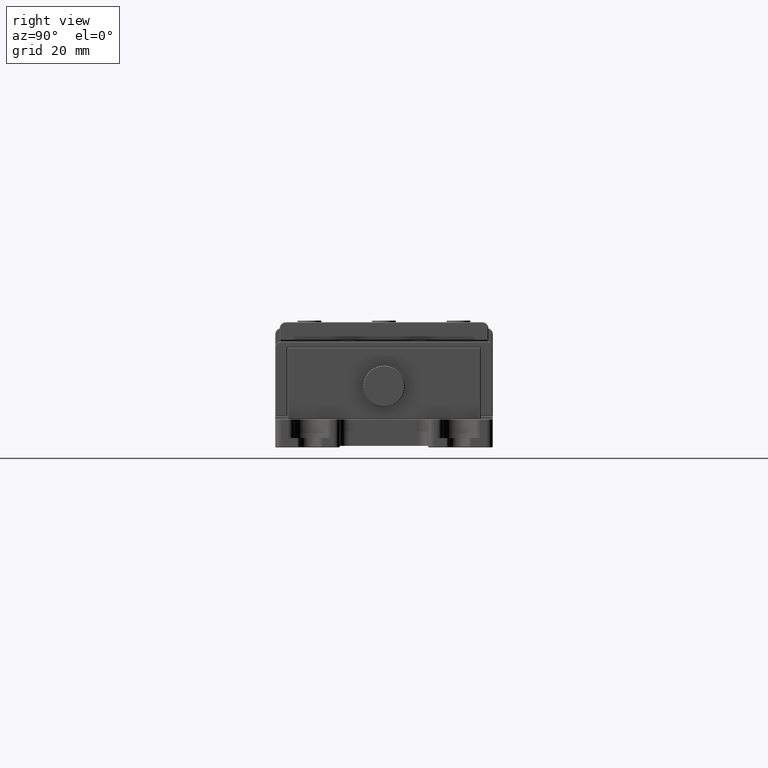
[diagram: clean part render]
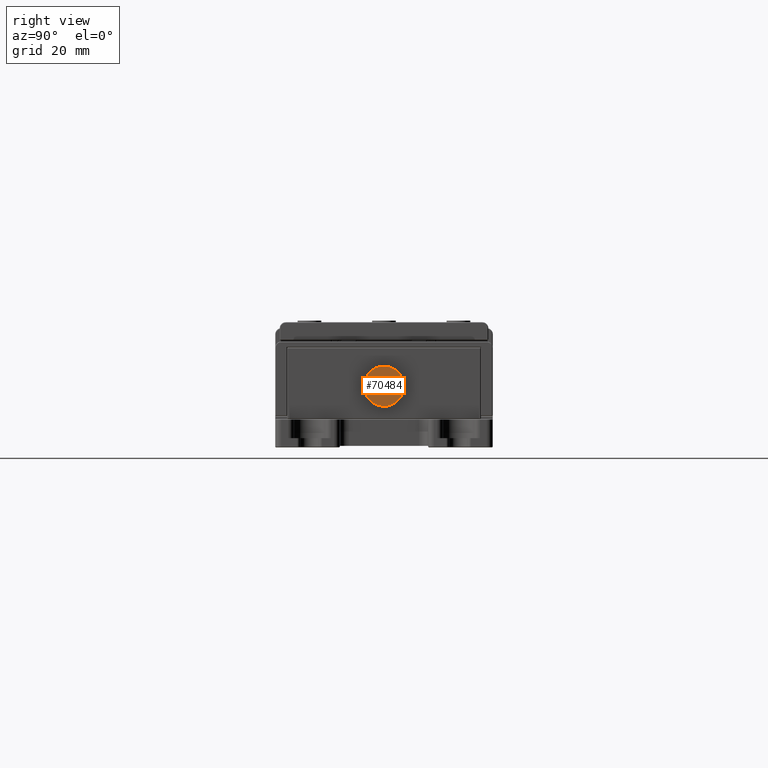
[diagram: same view with one face highlighted and labeled with its STEP entity id]
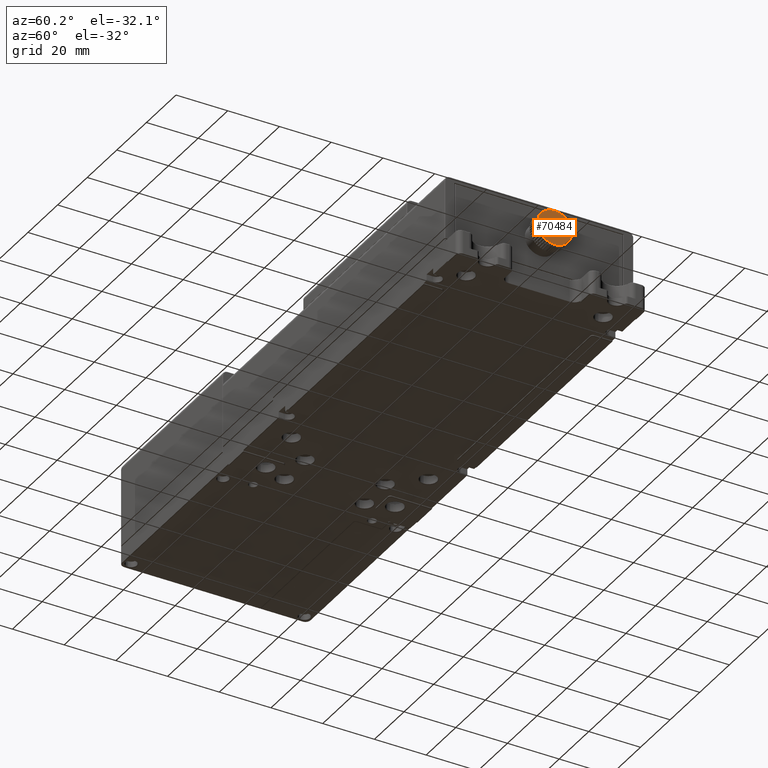
[diagram: same view with one face highlighted and labeled with its STEP entity id]
A machine part, right view. The second image highlights one B-rep face of the part: STEP entity #70484.
A second angle (auxiliary view) of the same face is appended — the face is thin or edge-on in the first view.
In plain terms, the highlighted planar face has unit normal (1, 0, 0).
Its self-contained STEP definition (entity closure, byte-faithful):
#87 = DIRECTION ( 'NONE',  ( 1.000000000000000000, 1.823545169718444796E-16, 8.205456656848479266E-17 ) ) ;
#179 = CIRCLE ( 'NONE', #1354, 6.699999999999997513 ) ;
#183 = DIRECTION ( 'NONE',  ( 0.000000000000000000, -0.4103440247055836210, 0.9119307985743344558 ) ) ;
#248 = EDGE_CURVE ( 'NONE', #11303, #12421, #52793, .T. ) ;
#280 = EDGE_CURVE ( 'NONE', #52298, #64868, #45716, .T. ) ;
#511 = EDGE_CURVE ( 'NONE', #1955, #22024, #51624, .T. ) ;
#517 = EDGE_CURVE ( 'NONE', #1281, #21743, #41080, .T. ) ;
#591 = CARTESIAN_POINT ( 'NONE',  ( 77.07474001859770851, -11.71850241578019869, 21.10993635044805217 ) ) ;
#598 = CARTESIAN_POINT ( 'NONE',  ( 77.07474001859770851, -8.969197450252782033, 15.00000000000000000 ) ) ;
#615 = ORIENTED_EDGE ( 'NONE', *, *, #511, .T. ) ;
#745 = DIRECTION ( 'NONE',  ( 0.000000000000000000, -0.4103440247055836210, 0.9119307985743344558 ) ) ;
#770 = EDGE_CURVE ( 'NONE', #64868, #14094, #53695, .T. ) ;
#1112 = ORIENTED_EDGE ( 'NONE', *, *, #52250, .T. ) ;
#1281 = VERTEX_POINT ( 'NONE', #591 ) ;
#1299 = CARTESIAN_POINT ( 'NONE',  ( 77.07474001859770851, -8.969197450252782033, 15.00000000000000000 ) ) ;
#1338 = CARTESIAN_POINT ( 'NONE',  ( 77.07474001859770851, -8.969197450252782033, 15.00000000000000000 ) ) ;
#1354 = AXIS2_PLACEMENT_3D ( 'NONE', #45200, #34138, #56622 ) ;
#1498 = VERTEX_POINT ( 'NONE', #36025 ) ;
#1560 = AXIS2_PLACEMENT_3D ( 'NONE', #58210, #46405, #69270 ) ;
#1928 = DIRECTION ( 'NONE',  ( 0.000000000000000000, -0.4103440247055836210, 0.9119307985743344558 ) ) ;
#1955 = VERTEX_POINT ( 'NONE', #32207 ) ;
#2076 = AXIS2_PLACEMENT_3D ( 'NONE', #67500, #12529, #22504 ) ;
#2083 = EDGE_LOOP ( 'NONE', ( #66597, #56348, #1112, #45281, #42321, #54802, #8423, #5755, #37272, #3643, #69590, #66206, #57055, #26618, #11806, #63907, #615, #63576, #66765, #35780, #61383, #16360, #47934, #29564, #44338, #15602, #34821, #68963, #20090, #4789, #8911, #37950, #42399, #40039, #58536, #14698, #23947, #36355, #17183, #51347, #17207, #67983, #24435, #31644, #3090, #46927, #31630, #63771, #62036, #63871 ) ) ;
#2513 = CARTESIAN_POINT ( 'NONE',  ( 77.07474001859770851, -2.698687376380169756, 17.36023376246129857 ) ) ;
#3090 = ORIENTED_EDGE ( 'NONE', *, *, #48856, .T. ) ;
#3351 = CIRCLE ( 'NONE', #45794, 6.699999999999997513 ) ;
#3643 = ORIENTED_EDGE ( 'NONE', *, *, #30662, .T. ) ;
#3687 = AXIS2_PLACEMENT_3D ( 'NONE', #40280, #29936, #12232 ) ;
#4517 = AXIS2_PLACEMENT_3D ( 'NONE', #62718, #63084, #24009 ) ;
#4789 = ORIENTED_EDGE ( 'NONE', *, *, #17285, .T. ) ;
#4943 = DIRECTION ( 'NONE',  ( 1.000000000000000000, 1.823545169718444796E-16, 8.205456656848479266E-17 ) ) ;
#4994 = VERTEX_POINT ( 'NONE', #9906 ) ;
#5035 = AXIS2_PLACEMENT_3D ( 'NONE', #47242, #12968, #29586 ) ;
#5070 = CIRCLE ( 'NONE', #66305, 6.699999999999997513 ) ;
#5259 = AXIS2_PLACEMENT_3D ( 'NONE', #68629, #45399, #745 ) ;
#5405 = CARTESIAN_POINT ( 'NONE',  ( 77.07474001859770851, -8.969197450252782033, 15.00000000000000000 ) ) ;
#5619 = VERTEX_POINT ( 'NONE', #42865 ) ;
#5639 = CARTESIAN_POINT ( 'NONE',  ( 77.07474001859770851, -9.503447428839230327, 8.321334193090629938 ) ) ;
#5755 = ORIENTED_EDGE ( 'NONE', *, *, #62267, .T. ) ;
#6319 = DIRECTION ( 'NONE',  ( 0.000000000000000000, -0.4103440247055836210, 0.9119307985743344558 ) ) ;
#6361 = DIRECTION ( 'NONE',  ( 1.000000000000000000, 1.823545169718444796E-16, 8.205456656848479266E-17 ) ) ;
#6899 = CIRCLE ( 'NONE', #42239, 6.699999999999997513 ) ;
#7894 = EDGE_CURVE ( 'NONE', #19225, #12166, #21548, .T. ) ;
#8063 = CARTESIAN_POINT ( 'NONE',  ( 77.07474001859770851, -8.969197450252782033, 15.00000000000000000 ) ) ;
#8136 = VERTEX_POINT ( 'NONE', #53653 ) ;
#8423 = ORIENTED_EDGE ( 'NONE', *, *, #26789, .T. ) ;
#8448 = DIRECTION ( 'NONE',  ( 1.000000000000000000, 1.823545169718444796E-16, 8.205456656848479266E-17 ) ) ;
#8507 = EDGE_CURVE ( 'NONE', #55212, #62599, #16700, .T. ) ;
#8633 = DIRECTION ( 'NONE',  ( 1.000000000000000000, 1.823545169718444796E-16, 8.205456656848479266E-17 ) ) ;
#8911 = ORIENTED_EDGE ( 'NONE', *, *, #37133, .T. ) ;
#9254 = VERTEX_POINT ( 'NONE', #24212 ) ;
#9739 = DIRECTION ( 'NONE',  ( 1.000000000000000000, 1.823545169718444796E-16, 8.205456656848479266E-17 ) ) ;
#9809 = EDGE_CURVE ( 'NONE', #70773, #1281, #55226, .T. ) ;
#9906 = CARTESIAN_POINT ( 'NONE',  ( 77.07474001859770851, -7.007349655229790031, 8.593663041240848344 ) ) ;
#10358 = VERTEX_POINT ( 'NONE', #64023 ) ;
#10375 = AXIS2_PLACEMENT_3D ( 'NONE', #1338, #35305, #12057 ) ;
#10493 = DIRECTION ( 'NONE',  ( 0.000000000000000000, -0.4103440247055836210, 0.9119307985743344558 ) ) ;
#10680 = CIRCLE ( 'NONE', #48318, 6.699999999999997513 ) ;
#10725 = VERTEX_POINT ( 'NONE', #68374 ) ;
#10857 = CARTESIAN_POINT ( 'NONE',  ( 77.07474001859770851, -8.969197450252782033, 15.00000000000000000 ) ) ;
#11303 = VERTEX_POINT ( 'NONE', #56323 ) ;
#11497 = CARTESIAN_POINT ( 'NONE',  ( 77.07474001859770851, -7.602101410844870344, 21.55904325485319717 ) ) ;
#11529 = CIRCLE ( 'NONE', #10375, 6.699999999999997513 ) ;
#11806 = ORIENTED_EDGE ( 'NONE', *, *, #23547, .T. ) ;
#11890 = EDGE_CURVE ( 'NONE', #20421, #65376, #48677, .T. ) ;
#11997 = CIRCLE ( 'NONE', #27293, 6.699999999999997513 ) ;
#12057 = DIRECTION ( 'NONE',  ( 0.000000000000000000, -0.4103440247055836210, 0.9119307985743344558 ) ) ;
#12166 = VERTEX_POINT ( 'NONE', #46066 ) ;
#12232 = DIRECTION ( 'NONE',  ( 0.000000000000000000, -0.4103440247055836210, 0.9119307985743344558 ) ) ;
#12246 = CIRCLE ( 'NONE', #59358, 6.699999999999997513 ) ;
#12421 = VERTEX_POINT ( 'NONE', #71492 ) ;
#12529 = DIRECTION ( 'NONE',  ( 1.000000000000000000, 1.823545169718444796E-16, 8.205456656848479266E-17 ) ) ;
#12755 = CIRCLE ( 'NONE', #24567, 6.699999999999997513 ) ;
#12968 = DIRECTION ( 'NONE',  ( 1.000000000000000000, 1.823545169718444796E-16, 8.205456656848479266E-17 ) ) ;
#13122 = CIRCLE ( 'NONE', #50791, 6.699999999999997513 ) ;
#13332 = CIRCLE ( 'NONE', #5035, 6.699999999999997513 ) ;
#13405 = AXIS2_PLACEMENT_3D ( 'NONE', #1299, #46672, #45937 ) ;
#13612 = AXIS2_PLACEMENT_3D ( 'NONE', #31204, #63669, #69941 ) ;
#13711 = CIRCLE ( 'NONE', #54936, 6.699999999999997513 ) ;
#13802 = VERTEX_POINT ( 'NONE', #58172 ) ;
#13839 = CARTESIAN_POINT ( 'NONE',  ( 77.07474001859770851, -8.969197450252782033, 15.00000000000000000 ) ) ;
#14094 = VERTEX_POINT ( 'NONE', #56993 ) ;
#14207 = CIRCLE ( 'NONE', #51900, 6.699999999999997513 ) ;
#14601 = CIRCLE ( 'NONE', #36998, 6.699999999999997513 ) ;
#14620 = EDGE_CURVE ( 'NONE', #19620, #62497, #13711, .T. ) ;
#14698 = ORIENTED_EDGE ( 'NONE', *, *, #64548, .T. ) ;
#15097 = AXIS2_PLACEMENT_3D ( 'NONE', #25658, #20113, #36014 ) ;
#15122 = AXIS2_PLACEMENT_3D ( 'NONE', #8063, #59314, #53060 ) ;
#15316 = VERTEX_POINT ( 'NONE', #47212 ) ;
#15602 = ORIENTED_EDGE ( 'NONE', *, *, #517, .T. ) ;
#15909 = CARTESIAN_POINT ( 'NONE',  ( 77.07474001859770851, -2.308720712943144626, 15.72667023590980051 ) ) ;
#16021 = CARTESIAN_POINT ( 'NONE',  ( 77.07474001859770851, -12.46260140462320010, 20.71717839599125099 ) ) ;
#16142 = DIRECTION ( 'NONE',  ( 1.000000000000000000, 1.823545169718444796E-16, 8.205456656848479266E-17 ) ) ;
#16268 = VERTEX_POINT ( 'NONE', #42990 ) ;
#16360 = ORIENTED_EDGE ( 'NONE', *, *, #770, .T. ) ;
#16499 = DIRECTION ( 'NONE',  ( 1.000000000000000000, 1.823545169718444796E-16, 8.205456656848479266E-17 ) ) ;
#16700 = CIRCLE ( 'NONE', #44971, 6.699999999999997513 ) ;
#16997 = CARTESIAN_POINT ( 'NONE',  ( 77.07474001859770851, -3.043947950640149891, 18.12752591793260137 ) ) ;
#17183 = ORIENTED_EDGE ( 'NONE', *, *, #39481, .T. ) ;
#17207 = ORIENTED_EDGE ( 'NONE', *, *, #28456, .T. ) ;
#17229 = CARTESIAN_POINT ( 'NONE',  ( 77.07474001859770851, -8.969197450252782033, 15.00000000000000000 ) ) ;
#17285 = EDGE_CURVE ( 'NONE', #31530, #8136, #33773, .T. ) ;
#17975 = DIRECTION ( 'NONE',  ( 0.000000000000000000, -0.4103440247055836210, 0.9119307985743344558 ) ) ;
#18174 = DIRECTION ( 'NONE',  ( 1.000000000000000000, 1.823545169718444796E-16, 8.205456656848479266E-17 ) ) ;
#18339 = CARTESIAN_POINT ( 'NONE',  ( 77.07474001859770851, -8.969197450252782033, 15.00000000000000000 ) ) ;
#18674 = CARTESIAN_POINT ( 'NONE',  ( 77.07474001859770851, -6.507133302019279419, 9.528415208553990823 ) ) ;
#18746 = EDGE_CURVE ( 'NONE', #65376, #49428, #24564, .T. ) ;
#18764 = VERTEX_POINT ( 'NONE', #2513 ) ;
#19031 = FACE_OUTER_BOUND ( 'NONE', #2083, .T. ) ;
#19151 = VERTEX_POINT ( 'NONE', #15909 ) ;
#19225 = VERTEX_POINT ( 'NONE', #16997 ) ;
#19362 = CARTESIAN_POINT ( 'NONE',  ( 77.07474001859770851, -14.32191604237821991, 19.02969027017150339 ) ) ;
#19586 = AXIS2_PLACEMENT_3D ( 'NONE', #18674, #51858, #41542 ) ;
#19620 = VERTEX_POINT ( 'NONE', #72244 ) ;
#19658 = AXIS2_PLACEMENT_3D ( 'NONE', #17229, #16142, #61115 ) ;
#20090 = ORIENTED_EDGE ( 'NONE', *, *, #39665, .T. ) ;
#20113 = DIRECTION ( 'NONE',  ( 1.000000000000000000, 1.823545169718444796E-16, 8.205456656848479266E-17 ) ) ;
#20344 = DIRECTION ( 'NONE',  ( 1.000000000000000000, 1.823545169718444796E-16, 8.205456656848479266E-17 ) ) ;
#20373 = CIRCLE ( 'NONE', #1560, 6.699999999999997513 ) ;
#20421 = VERTEX_POINT ( 'NONE', #5639 ) ;
#20650 = CARTESIAN_POINT ( 'NONE',  ( 77.07474001859770851, -15.23970752412540008, 12.63976623753868012 ) ) ;
#20759 = DIRECTION ( 'NONE',  ( 1.000000000000000000, 1.823545169718444796E-16, 8.205456656848479266E-17 ) ) ;
#20821 = CARTESIAN_POINT ( 'NONE',  ( 77.07474001859770851, -8.969197450252782033, 15.00000000000000000 ) ) ;
#21043 = EDGE_CURVE ( 'NONE', #22024, #15316, #14601, .T. ) ;
#21376 = CIRCLE ( 'NONE', #53163, 6.699999999999997513 ) ;
#21380 = EDGE_CURVE ( 'NONE', #14094, #57216, #47549, .T. ) ;
#21478 = CARTESIAN_POINT ( 'NONE',  ( 77.07474001859770851, -8.969197450252782033, 15.00000000000000000 ) ) ;
#21528 = AXIS2_PLACEMENT_3D ( 'NONE', #72079, #55101, #31892 ) ;
#21548 = CIRCLE ( 'NONE', #58048, 6.699999999999997513 ) ;
#21583 = CARTESIAN_POINT ( 'NONE',  ( 77.07474001859770851, -8.969197450252782033, 15.00000000000000000 ) ) ;
#21743 = VERTEX_POINT ( 'NONE', #16021 ) ;
#22024 = VERTEX_POINT ( 'NONE', #36622 ) ;
#22158 = CIRCLE ( 'NONE', #63396, 6.699999999999997513 ) ;
#22202 = EDGE_CURVE ( 'NONE', #62357, #55212, #61776, .T. ) ;
#22504 = DIRECTION ( 'NONE',  ( 0.000000000000000000, -0.4103440247055836210, 0.9119307985743344558 ) ) ;
#22510 = VERTEX_POINT ( 'NONE', #55288 ) ;
#22533 = CIRCLE ( 'NONE', #43760, 6.699999999999997513 ) ;
#22780 = AXIS2_PLACEMENT_3D ( 'NONE', #35853, #69756, #36571 ) ;
#23103 = AXIS2_PLACEMENT_3D ( 'NONE', #71922, #65639, #62569 ) ;
#23547 = EDGE_CURVE ( 'NONE', #12166, #67647, #53608, .T. ) ;
#23652 = CIRCLE ( 'NONE', #60170, 6.699999999999997513 ) ;
#23848 = PLANE ( 'NONE',  #19586 ) ;
#23947 = ORIENTED_EDGE ( 'NONE', *, *, #22202, .T. ) ;
#23952 = CARTESIAN_POINT ( 'NONE',  ( 77.07474001859770851, -12.65483606587746124, 9.404817429697567732 ) ) ;
#24009 = DIRECTION ( 'NONE',  ( 0.000000000000000000, -0.4103440247055836210, 0.9119307985743344558 ) ) ;
#24212 = CARTESIAN_POINT ( 'NONE',  ( 77.07474001859770851, -15.42945726095254955, 16.77624412124499997 ) ) ;
#24317 = EDGE_CURVE ( 'NONE', #16268, #10358, #66651, .T. ) ;
#24435 = ORIENTED_EDGE ( 'NONE', *, *, #64994, .T. ) ;
#24564 = CIRCLE ( 'NONE', #15122, 6.699999999999997513 ) ;
#24567 = AXIS2_PLACEMENT_3D ( 'NONE', #68433, #45572, #183 ) ;
#25184 = CARTESIAN_POINT ( 'NONE',  ( 77.07474001859770851, -8.969197450252782033, 15.00000000000000000 ) ) ;
#25658 = CARTESIAN_POINT ( 'NONE',  ( 77.07474001859770851, -8.969197450252782033, 15.00000000000000000 ) ) ;
#25889 = CARTESIAN_POINT ( 'NONE',  ( 77.07474001859770851, -8.969197450252782033, 15.00000000000000000 ) ) ;
#26618 = ORIENTED_EDGE ( 'NONE', *, *, #7894, .T. ) ;
#26789 = EDGE_CURVE ( 'NONE', #10725, #54999, #23652, .T. ) ;
#26911 = DIRECTION ( 'NONE',  ( 0.000000000000000000, -0.4103440247055836210, 0.9119307985743344558 ) ) ;
#27190 = DIRECTION ( 'NONE',  ( 0.000000000000000000, -0.4103440247055836210, 0.9119307985743344558 ) ) ;
#27206 = AXIS2_PLACEMENT_3D ( 'NONE', #5405, #16499, #37543 ) ;
#27293 = AXIS2_PLACEMENT_3D ( 'NONE', #59155, #8633, #70228 ) ;
#27307 = EDGE_CURVE ( 'NONE', #68019, #31086, #21376, .T. ) ;
#27480 = DIRECTION ( 'NONE',  ( 0.000000000000000000, -0.4103440247055836210, 0.9119307985743344558 ) ) ;
#27557 = DIRECTION ( 'NONE',  ( 1.000000000000000000, 1.823545169718444796E-16, 8.205456656848479266E-17 ) ) ;
#27902 = CARTESIAN_POINT ( 'NONE',  ( 77.07474001859770851, -8.969197450252782033, 15.00000000000000000 ) ) ;
#27999 = DIRECTION ( 'NONE',  ( 1.000000000000000000, 1.823545169718444796E-16, 8.205456656848479266E-17 ) ) ;
#28362 = CARTESIAN_POINT ( 'NONE',  ( 77.07474001859770851, -8.969197450252782033, 15.00000000000000000 ) ) ;
#28456 = EDGE_CURVE ( 'NONE', #10358, #36485, #13332, .T. ) ;
#28880 = DIRECTION ( 'NONE',  ( 0.000000000000000000, -0.4103440247055836210, 0.9119307985743344558 ) ) ;
#29247 = CARTESIAN_POINT ( 'NONE',  ( 77.07474001859770851, -8.969197450252782033, 15.00000000000000000 ) ) ;
#29393 = DIRECTION ( 'NONE',  ( 1.000000000000000000, 1.823545169718444796E-16, 8.205456656848479266E-17 ) ) ;
#29564 = ORIENTED_EDGE ( 'NONE', *, *, #44523, .T. ) ;
#29582 = CARTESIAN_POINT ( 'NONE',  ( 77.07474001859770851, -8.969197450252782033, 15.00000000000000000 ) ) ;
#29586 = DIRECTION ( 'NONE',  ( 0.000000000000000000, -0.4103440247055836210, 0.9119307985743344558 ) ) ;
#29635 = VERTEX_POINT ( 'NONE', #56610 ) ;
#29936 = DIRECTION ( 'NONE',  ( 1.000000000000000000, 1.823545169718444796E-16, 8.205456656848479266E-17 ) ) ;
#29980 = DIRECTION ( 'NONE',  ( 1.000000000000000000, 1.823545169718444796E-16, 8.205456656848479266E-17 ) ) ;
#30101 = CARTESIAN_POINT ( 'NONE',  ( 77.07474001859770851, -3.616478858127374796, 10.97030972982848063 ) ) ;
#30662 = EDGE_CURVE ( 'NONE', #61157, #19151, #22158, .T. ) ;
#30770 = CIRCLE ( 'NONE', #3687, 6.699999999999997513 ) ;
#31086 = VERTEX_POINT ( 'NONE', #52360 ) ;
#31204 = CARTESIAN_POINT ( 'NONE',  ( 77.07474001859770851, -8.969197450252782033, 15.00000000000000000 ) ) ;
#31257 = CIRCLE ( 'NONE', #55986, 6.699999999999997513 ) ;
#31530 = VERTEX_POINT ( 'NONE', #19362 ) ;
#31550 = VERTEX_POINT ( 'NONE', #66129 ) ;
#31593 = DIRECTION ( 'NONE',  ( 1.000000000000000000, 1.823545169718444796E-16, 8.205456656848479266E-17 ) ) ;
#31630 = ORIENTED_EDGE ( 'NONE', *, *, #11890, .T. ) ;
#31644 = ORIENTED_EDGE ( 'NONE', *, *, #248, .T. ) ;
#31892 = DIRECTION ( 'NONE',  ( 0.000000000000000000, -0.4103440247055836210, 0.9119307985743344558 ) ) ;
#31909 = DIRECTION ( 'NONE',  ( 0.000000000000000000, -0.4103440247055836210, 0.9119307985743344558 ) ) ;
#32188 = DIRECTION ( 'NONE',  ( 1.000000000000000000, 1.823545169718444796E-16, 8.205456656848479266E-17 ) ) ;
#32207 = CARTESIAN_POINT ( 'NONE',  ( 77.07474001859770851, -4.611358872040510093, 20.08912987908984960 ) ) ;
#32482 = EDGE_CURVE ( 'NONE', #36485, #56538, #14207, .T. ) ;
#33252 = CARTESIAN_POINT ( 'NONE',  ( 77.07474001859770851, -2.508937639553019849, 13.22375587875497871 ) ) ;
#33587 = AXIS2_PLACEMENT_3D ( 'NONE', #13839, #48852, #53662 ) ;
#33752 = CIRCLE ( 'NONE', #60853, 6.699999999999997513 ) ;
#33773 = CIRCLE ( 'NONE', #19658, 6.699999999999997513 ) ;
#34138 = DIRECTION ( 'NONE',  ( 1.000000000000000000, 1.823545169718444796E-16, 8.205456656848479266E-17 ) ) ;
#34219 = VERTEX_POINT ( 'NONE', #50709 ) ;
#34267 = CARTESIAN_POINT ( 'NONE',  ( 77.07474001859770851, -8.969197450252782033, 15.00000000000000000 ) ) ;
#34372 = DIRECTION ( 'NONE',  ( 1.000000000000000000, 1.823545169718444796E-16, 8.205456656848479266E-17 ) ) ;
#34821 = ORIENTED_EDGE ( 'NONE', *, *, #69401, .T. ) ;
#34993 = DIRECTION ( 'NONE',  ( 1.000000000000000000, 1.823545169718444796E-16, 8.205456656848479266E-17 ) ) ;
#35305 = DIRECTION ( 'NONE',  ( 1.000000000000000000, 1.823545169718444796E-16, 8.205456656848479266E-17 ) ) ;
#35715 = CIRCLE ( 'NONE', #45119, 6.699999999999997513 ) ;
#35780 = ORIENTED_EDGE ( 'NONE', *, *, #59927, .T. ) ;
#35853 = CARTESIAN_POINT ( 'NONE',  ( 77.07474001859770851, -8.969197450252782033, 15.00000000000000000 ) ) ;
#35904 = EDGE_CURVE ( 'NONE', #9254, #19620, #54473, .T. ) ;
#36014 = DIRECTION ( 'NONE',  ( 0.000000000000000000, -0.4103440247055836210, 0.9119307985743344558 ) ) ;
#36025 = CARTESIAN_POINT ( 'NONE',  ( 77.07474001859770851, -2.337256298431234836, 14.04744734592991939 ) ) ;
#36042 = EDGE_CURVE ( 'NONE', #1498, #61157, #5070, .T. ) ;
#36087 = DIRECTION ( 'NONE',  ( 0.000000000000000000, -0.4103440247055836210, 0.9119307985743344558 ) ) ;
#36355 = ORIENTED_EDGE ( 'NONE', *, *, #8507, .T. ) ;
#36409 = DIRECTION ( 'NONE',  ( 0.000000000000000000, -0.4103440247055836210, 0.9119307985743344558 ) ) ;
#36485 = VERTEX_POINT ( 'NONE', #36876 ) ;
#36571 = DIRECTION ( 'NONE',  ( 0.000000000000000000, -0.4103440247055836210, 0.9119307985743344558 ) ) ;
#36622 = CARTESIAN_POINT ( 'NONE',  ( 77.07474001859770851, -5.283558834628049539, 20.59518257030239852 ) ) ;
#36876 = CARTESIAN_POINT ( 'NONE',  ( 77.07474001859770851, -13.32703602846502022, 9.910870120910129089 ) ) ;
#36998 = AXIS2_PLACEMENT_3D ( 'NONE', #64439, #34993, #36087 ) ;
#37133 = EDGE_CURVE ( 'NONE', #8136, #51065, #68856, .T. ) ;
#37272 = ORIENTED_EDGE ( 'NONE', *, *, #36042, .T. ) ;
#37543 = DIRECTION ( 'NONE',  ( 0.000000000000000000, -0.4103440247055836210, 0.9119307985743344558 ) ) ;
#37715 = DIRECTION ( 'NONE',  ( 0.000000000000000000, -0.4103440247055836210, 0.9119307985743344558 ) ) ;
#37908 = EDGE_CURVE ( 'NONE', #72328, #13802, #12246, .T. ) ;
#37950 = ORIENTED_EDGE ( 'NONE', *, *, #49203, .T. ) ;
#39481 = EDGE_CURVE ( 'NONE', #62599, #16268, #31257, .T. ) ;
#39544 = CIRCLE ( 'NONE', #13612, 6.699999999999997513 ) ;
#39665 = EDGE_CURVE ( 'NONE', #31550, #31530, #39544, .T. ) ;
#40039 = ORIENTED_EDGE ( 'NONE', *, *, #14620, .T. ) ;
#40280 = CARTESIAN_POINT ( 'NONE',  ( 77.07474001859770851, -8.969197450252782033, 15.00000000000000000 ) ) ;
#40657 = DIRECTION ( 'NONE',  ( 1.000000000000000000, 1.823545169718444796E-16, 8.205456656848479266E-17 ) ) ;
#41022 = AXIS2_PLACEMENT_3D ( 'NONE', #68830, #45598, #68098 ) ;
#41080 = CIRCLE ( 'NONE', #70472, 6.699999999999997513 ) ;
#41422 = DIRECTION ( 'NONE',  ( 1.000000000000000000, 1.823545169718444796E-16, 8.205456656848479266E-17 ) ) ;
#41542 = DIRECTION ( 'NONE',  ( -2.449293598294625063E-16, 0.000000000000000000, 1.000000000000000000 ) ) ;
#41554 = AXIS2_PLACEMENT_3D ( 'NONE', #69416, #29980, #64588 ) ;
#42041 = DIRECTION ( 'NONE',  ( 0.000000000000000000, -0.4103440247055836210, 0.9119307985743344558 ) ) ;
#42239 = AXIS2_PLACEMENT_3D ( 'NONE', #20821, #9739, #65786 ) ;
#42321 = ORIENTED_EDGE ( 'NONE', *, *, #27307, .T. ) ;
#42399 = ORIENTED_EDGE ( 'NONE', *, *, #35904, .T. ) ;
#42865 = CARTESIAN_POINT ( 'NONE',  ( 77.07474001859770851, -13.15160732624737960, 20.23425712295290069 ) ) ;
#42990 = CARTESIAN_POINT ( 'NONE',  ( 77.07474001859770851, -14.45574165142403977, 11.15450487861521900 ) ) ;
#43356 = EDGE_CURVE ( 'NONE', #15316, #22510, #33752, .T. ) ;
#43760 = AXIS2_PLACEMENT_3D ( 'NONE', #55616, #20344, #64582 ) ;
#44081 = DIRECTION ( 'NONE',  ( 1.000000000000000000, 1.823545169718444796E-16, 8.205456656848479266E-17 ) ) ;
#44338 = ORIENTED_EDGE ( 'NONE', *, *, #9809, .T. ) ;
#44523 = EDGE_CURVE ( 'NONE', #57216, #70773, #56260, .T. ) ;
#44947 = DIRECTION ( 'NONE',  ( 0.000000000000000000, -0.4103440247055836210, 0.9119307985743344558 ) ) ;
#44958 = DIRECTION ( 'NONE',  ( 1.000000000000000000, 1.823545169718444796E-16, 8.205456656848479266E-17 ) ) ;
#44971 = AXIS2_PLACEMENT_3D ( 'NONE', #66343, #54921, #26911 ) ;
#45119 = AXIS2_PLACEMENT_3D ( 'NONE', #48948, #27557, #27190 ) ;
#45200 = CARTESIAN_POINT ( 'NONE',  ( 77.07474001859770851, -8.969197450252782033, 15.00000000000000000 ) ) ;
#45281 = ORIENTED_EDGE ( 'NONE', *, *, #69179, .T. ) ;
#45399 = DIRECTION ( 'NONE',  ( 1.000000000000000000, 1.823545169718444796E-16, 8.205456656848479266E-17 ) ) ;
#45572 = DIRECTION ( 'NONE',  ( 1.000000000000000000, 1.823545169718444796E-16, 8.205456656848479266E-17 ) ) ;
#45598 = DIRECTION ( 'NONE',  ( 1.000000000000000000, 1.823545169718444796E-16, 8.205456656848479266E-17 ) ) ;
#45716 = CIRCLE ( 'NONE', #15097, 6.699999999999997513 ) ;
#45782 = DIRECTION ( 'NONE',  ( 0.000000000000000000, -0.4103440247055836210, 0.9119307985743344558 ) ) ;
#45794 = AXIS2_PLACEMENT_3D ( 'NONE', #70981, #54735, #60265 ) ;
#45937 = DIRECTION ( 'NONE',  ( 0.000000000000000000, -0.4103440247055836210, 0.9119307985743344558 ) ) ;
#46066 = CARTESIAN_POINT ( 'NONE',  ( 77.07474001859770851, -3.482653249081499869, 18.84549512138475080 ) ) ;
#46405 = DIRECTION ( 'NONE',  ( 1.000000000000000000, 1.823545169718444796E-16, 8.205456656848479266E-17 ) ) ;
#46475 = AXIS2_PLACEMENT_3D ( 'NONE', #72543, #50743, #55930 ) ;
#46496 = AXIS2_PLACEMENT_3D ( 'NONE', #50276, #87, #72798 ) ;
#46672 = DIRECTION ( 'NONE',  ( 1.000000000000000000, 1.823545169718444796E-16, 8.205456656848479266E-17 ) ) ;
#46927 = ORIENTED_EDGE ( 'NONE', *, *, #59413, .T. ) ;
#47212 = CARTESIAN_POINT ( 'NONE',  ( 77.07474001859770851, -6.013883519877790462, 21.01299588998124790 ) ) ;
#47242 = CARTESIAN_POINT ( 'NONE',  ( 77.07474001859770851, -8.969197450252782033, 15.00000000000000000 ) ) ;
#47549 = CIRCLE ( 'NONE', #13405, 6.699999999999997513 ) ;
#47614 = AXIS2_PLACEMENT_3D ( 'NONE', #25184, #41422, #1928 ) ;
#47930 = CARTESIAN_POINT ( 'NONE',  ( 77.07474001859770851, -4.163740754829039936, 10.33121151170808005 ) ) ;
#47934 = ORIENTED_EDGE ( 'NONE', *, *, #21380, .T. ) ;
#48086 = AXIS2_PLACEMENT_3D ( 'NONE', #55118, #4943, #27480 ) ;
#48318 = AXIS2_PLACEMENT_3D ( 'NONE', #61286, #61651, #6319 ) ;
#48542 = CARTESIAN_POINT ( 'NONE',  ( 77.07474001859770851, -8.434947471666291108, 21.67866580690935052 ) ) ;
#48677 = CIRCLE ( 'NONE', #22780, 6.699999999999997513 ) ;
#48852 = DIRECTION ( 'NONE',  ( 1.000000000000000000, 1.823545169718444796E-16, 8.205456656848479266E-17 ) ) ;
#48856 = EDGE_CURVE ( 'NONE', #12421, #52736, #60135, .T. ) ;
#48948 = CARTESIAN_POINT ( 'NONE',  ( 77.07474001859770851, -8.969197450252782033, 15.00000000000000000 ) ) ;
#49203 = EDGE_CURVE ( 'NONE', #51065, #9254, #30770, .T. ) ;
#49276 = CIRCLE ( 'NONE', #4517, 6.699999999999997513 ) ;
#49416 = CARTESIAN_POINT ( 'NONE',  ( 77.07474001859770851, -5.475793495882399498, 9.282821604008720584 ) ) ;
#49428 = VERTEX_POINT ( 'NONE', #53486 ) ;
#49854 = CARTESIAN_POINT ( 'NONE',  ( 77.07474001859770851, -8.969197450252782033, 15.00000000000000000 ) ) ;
#49862 = DIRECTION ( 'NONE',  ( 0.000000000000000000, -0.4103440247055836210, 0.9119307985743344558 ) ) ;
#50008 = DIRECTION ( 'NONE',  ( 0.000000000000000000, -0.4103440247055836210, 0.9119307985743344558 ) ) ;
#50276 = CARTESIAN_POINT ( 'NONE',  ( 77.07474001859770851, -8.969197450252782033, 15.00000000000000000 ) ) ;
#50303 = CARTESIAN_POINT ( 'NONE',  ( 77.07474001859770851, -10.93104524527572075, 21.40633695875915166 ) ) ;
#50709 = CARTESIAN_POINT ( 'NONE',  ( 77.07474001859770851, -6.219892484725370707, 8.890063649551958491 ) ) ;
#50743 = DIRECTION ( 'NONE',  ( 1.000000000000000000, 1.823545169718444796E-16, 8.205456656848479266E-17 ) ) ;
#50791 = AXIS2_PLACEMENT_3D ( 'NONE', #71054, #31593, #36409 ) ;
#50831 = DIRECTION ( 'NONE',  ( 0.000000000000000000, -0.4103440247055836210, 0.9119307985743344558 ) ) ;
#51065 = VERTEX_POINT ( 'NONE', #56768 ) ;
#51347 = ORIENTED_EDGE ( 'NONE', *, *, #24317, .T. ) ;
#51364 = DIRECTION ( 'NONE',  ( 0.000000000000000000, -0.4103440247055836210, 0.9119307985743344558 ) ) ;
#51527 = DIRECTION ( 'NONE',  ( 1.000000000000000000, 1.823545169718444796E-16, 8.205456656848479266E-17 ) ) ;
#51624 = CIRCLE ( 'NONE', #48086, 6.699999999999997513 ) ;
#51644 = CARTESIAN_POINT ( 'NONE',  ( 77.07474001859770851, -15.48607840869924956, 13.44428068937934029 ) ) ;
#51685 = CARTESIAN_POINT ( 'NONE',  ( 77.07474001859770851, -8.969197450252782033, 15.00000000000000000 ) ) ;
#51858 = DIRECTION ( 'NONE',  ( 1.000000000000000000, 1.090652955810485893E-16, 2.449293598294625063E-16 ) ) ;
#51877 = DIRECTION ( 'NONE',  ( 0.000000000000000000, -0.4103440247055836210, 0.9119307985743344558 ) ) ;
#51900 = AXIS2_PLACEMENT_3D ( 'NONE', #71154, #8448, #42041 ) ;
#52122 = CIRCLE ( 'NONE', #21528, 6.699999999999997513 ) ;
#52250 = EDGE_CURVE ( 'NONE', #13802, #63463, #71569, .T. ) ;
#52298 = VERTEX_POINT ( 'NONE', #11497 ) ;
#52360 = CARTESIAN_POINT ( 'NONE',  ( 77.07474001859770851, -3.153632531182615217, 11.67295857072977938 ) ) ;
#52679 = EDGE_CURVE ( 'NONE', #4994, #34219, #11529, .T. ) ;
#52736 = VERTEX_POINT ( 'NONE', #53700 ) ;
#52793 = CIRCLE ( 'NONE', #41022, 6.699999999999997513 ) ;
#53060 = DIRECTION ( 'NONE',  ( 0.000000000000000000, -0.4103440247055836210, 0.9119307985743344558 ) ) ;
#53163 = AXIS2_PLACEMENT_3D ( 'NONE', #51685, #34372, #45782 ) ;
#53486 = CARTESIAN_POINT ( 'NONE',  ( 77.07474001859770851, -7.825746337412878617, 8.398294193729531898 ) ) ;
#53608 = CIRCLE ( 'NONE', #46496, 6.699999999999997513 ) ;
#53653 = CARTESIAN_POINT ( 'NONE',  ( 77.07474001859770851, -14.78476236932296040, 18.32704142927019930 ) ) ;
#53662 = DIRECTION ( 'NONE',  ( 0.000000000000000000, -0.4103440247055836210, 0.9119307985743344558 ) ) ;
#53695 = CIRCLE ( 'NONE', #57394, 6.699999999999997513 ) ;
#53700 = CARTESIAN_POINT ( 'NONE',  ( 77.07474001859770851, -10.33629348966064043, 8.440956745146788620 ) ) ;
#54158 = EDGE_CURVE ( 'NONE', #31086, #10725, #12755, .T. ) ;
#54446 = CARTESIAN_POINT ( 'NONE',  ( 77.07474001859770851, -2.270164631003295241, 14.88616113748692094 ) ) ;
#54473 = CIRCLE ( 'NONE', #41554, 6.699999999999997513 ) ;
#54504 = EDGE_CURVE ( 'NONE', #67647, #1955, #6899, .T. ) ;
#54506 = EDGE_CURVE ( 'NONE', #49428, #4994, #3351, .T. ) ;
#54735 = DIRECTION ( 'NONE',  ( 1.000000000000000000, 1.823545169718444796E-16, 8.205456656848479266E-17 ) ) ;
#54802 = ORIENTED_EDGE ( 'NONE', *, *, #54158, .T. ) ;
#54921 = DIRECTION ( 'NONE',  ( 1.000000000000000000, 1.823545169718444796E-16, 8.205456656848479266E-17 ) ) ;
#54936 = AXIS2_PLACEMENT_3D ( 'NONE', #29247, #18174, #51364 ) ;
#54999 = VERTEX_POINT ( 'NONE', #33252 ) ;
#55101 = DIRECTION ( 'NONE',  ( 1.000000000000000000, 1.823545169718444796E-16, 8.205456656848479266E-17 ) ) ;
#55118 = CARTESIAN_POINT ( 'NONE',  ( 77.07474001859770851, -8.969197450252782033, 15.00000000000000000 ) ) ;
#55212 = VERTEX_POINT ( 'NONE', #20650 ) ;
#55226 = CIRCLE ( 'NONE', #70553, 6.699999999999997513 ) ;
#55288 = CARTESIAN_POINT ( 'NONE',  ( 77.07474001859770851, -6.790815271228510142, 21.33598067248550123 ) ) ;
#55616 = CARTESIAN_POINT ( 'NONE',  ( 77.07474001859770851, -8.969197450252782033, 15.00000000000000000 ) ) ;
#55800 = CARTESIAN_POINT ( 'NONE',  ( 77.07474001859770851, -8.969197450252782033, 15.00000000000000000 ) ) ;
#55930 = DIRECTION ( 'NONE',  ( 0.000000000000000000, -0.4103440247055836210, 0.9119307985743344558 ) ) ;
#55986 = AXIS2_PLACEMENT_3D ( 'NONE', #598, #29393, #51877 ) ;
#56122 = EDGE_CURVE ( 'NONE', #18764, #19225, #10680, .T. ) ;
#56260 = CIRCLE ( 'NONE', #2076, 6.699999999999997513 ) ;
#56323 = CARTESIAN_POINT ( 'NONE',  ( 77.07474001859770851, -11.92451138062773985, 8.987004110018720127 ) ) ;
#56348 = ORIENTED_EDGE ( 'NONE', *, *, #37908, .T. ) ;
#56496 = DIRECTION ( 'NONE',  ( 0.000000000000000000, -0.4103440247055836210, 0.9119307985743344558 ) ) ;
#56538 = VERTEX_POINT ( 'NONE', #23952 ) ;
#56610 = CARTESIAN_POINT ( 'NONE',  ( 77.07474001859770851, -15.62967418756239901, 14.27332976409016041 ) ) ;
#56622 = DIRECTION ( 'NONE',  ( 0.000000000000000000, -0.4103440247055836210, 0.9119307985743344558 ) ) ;
#56768 = CARTESIAN_POINT ( 'NONE',  ( 77.07474001859770851, -15.15589376344390082, 17.57192315755110101 ) ) ;
#56993 = CARTESIAN_POINT ( 'NONE',  ( 77.07474001859770851, -9.276218973795479883, 21.69296180954900066 ) ) ;
#57055 = ORIENTED_EDGE ( 'NONE', *, *, #56122, .T. ) ;
#57216 = VERTEX_POINT ( 'NONE', #58261 ) ;
#57270 = CIRCLE ( 'NONE', #23103, 6.699999999999997513 ) ;
#57394 = AXIS2_PLACEMENT_3D ( 'NONE', #21478, #20759, #49862 ) ;
#58048 = AXIS2_PLACEMENT_3D ( 'NONE', #27902, #66966, #50008 ) ;
#58172 = CARTESIAN_POINT ( 'NONE',  ( 77.07474001859770851, -4.786787574258229760, 9.765742877047090431 ) ) ;
#58210 = CARTESIAN_POINT ( 'NONE',  ( 77.07474001859770851, -8.969197450252782033, 15.00000000000000000 ) ) ;
#58261 = CARTESIAN_POINT ( 'NONE',  ( 77.07474001859770851, -10.11264856309264104, 21.60170580627050185 ) ) ;
#58536 = ORIENTED_EDGE ( 'NONE', *, *, #65166, .T. ) ;
#58991 = CARTESIAN_POINT ( 'NONE',  ( 77.07474001859770851, -15.66823026950224929, 15.11383886251305064 ) ) ;
#59155 = CARTESIAN_POINT ( 'NONE',  ( 77.07474001859770851, -8.969197450252782033, 15.00000000000000000 ) ) ;
#59314 = DIRECTION ( 'NONE',  ( 1.000000000000000000, 1.823545169718444796E-16, 8.205456656848479266E-17 ) ) ;
#59358 = AXIS2_PLACEMENT_3D ( 'NONE', #28362, #67446, #50831 ) ;
#59413 = EDGE_CURVE ( 'NONE', #52736, #20421, #52122, .T. ) ;
#59580 = AXIS2_PLACEMENT_3D ( 'NONE', #34267, #44958, #67818 ) ;
#59762 = AXIS2_PLACEMENT_3D ( 'NONE', #29582, #40657, #56496 ) ;
#59927 = EDGE_CURVE ( 'NONE', #22510, #52298, #20373, .T. ) ;
#60118 = EDGE_CURVE ( 'NONE', #65661, #18764, #35715, .T. ) ;
#60135 = CIRCLE ( 'NONE', #27206, 6.699999999999997513 ) ;
#60159 = DIRECTION ( 'NONE',  ( 0.000000000000000000, -0.4103440247055836210, 0.9119307985743344558 ) ) ;
#60170 = AXIS2_PLACEMENT_3D ( 'NONE', #21583, #44081, #10493 ) ;
#60265 = DIRECTION ( 'NONE',  ( 0.000000000000000000, -0.4103440247055836210, 0.9119307985743344558 ) ) ;
#60853 = AXIS2_PLACEMENT_3D ( 'NONE', #18339, #51527, #17975 ) ;
#61115 = DIRECTION ( 'NONE',  ( 0.000000000000000000, -0.4103440247055836210, 0.9119307985743344558 ) ) ;
#61157 = VERTEX_POINT ( 'NONE', #54446 ) ;
#61286 = CARTESIAN_POINT ( 'NONE',  ( 77.07474001859770851, -8.969197450252782033, 15.00000000000000000 ) ) ;
#61383 = ORIENTED_EDGE ( 'NONE', *, *, #280, .T. ) ;
#61651 = DIRECTION ( 'NONE',  ( 1.000000000000000000, 1.823545169718444796E-16, 8.205456656848479266E-17 ) ) ;
#61776 = CIRCLE ( 'NONE', #5259, 6.699999999999997513 ) ;
#62036 = ORIENTED_EDGE ( 'NONE', *, *, #54506, .T. ) ;
#62267 = EDGE_CURVE ( 'NONE', #54999, #1498, #49276, .T. ) ;
#62357 = VERTEX_POINT ( 'NONE', #51644 ) ;
#62497 = VERTEX_POINT ( 'NONE', #58991 ) ;
#62569 = DIRECTION ( 'NONE',  ( 0.000000000000000000, -0.4103440247055836210, 0.9119307985743344558 ) ) ;
#62599 = VERTEX_POINT ( 'NONE', #67058 ) ;
#62718 = CARTESIAN_POINT ( 'NONE',  ( 77.07474001859770851, -8.969197450252782033, 15.00000000000000000 ) ) ;
#63084 = DIRECTION ( 'NONE',  ( 1.000000000000000000, 1.823545169718444796E-16, 8.205456656848479266E-17 ) ) ;
#63166 = CARTESIAN_POINT ( 'NONE',  ( 77.07474001859770851, -8.662175926710029117, 8.307038190450988679 ) ) ;
#63396 = AXIS2_PLACEMENT_3D ( 'NONE', #55800, #6361, #28880 ) ;
#63463 = VERTEX_POINT ( 'NONE', #47930 ) ;
#63576 = ORIENTED_EDGE ( 'NONE', *, *, #21043, .T. ) ;
#63669 = DIRECTION ( 'NONE',  ( 1.000000000000000000, 1.823545169718444796E-16, 8.205456656848479266E-17 ) ) ;
#63771 = ORIENTED_EDGE ( 'NONE', *, *, #18746, .T. ) ;
#63871 = ORIENTED_EDGE ( 'NONE', *, *, #52679, .T. ) ;
#63907 = ORIENTED_EDGE ( 'NONE', *, *, #54504, .T. ) ;
#64023 = CARTESIAN_POINT ( 'NONE',  ( 77.07474001859770851, -13.93051027342755965, 10.49718143041480012 ) ) ;
#64439 = CARTESIAN_POINT ( 'NONE',  ( 77.07474001859770851, -8.969197450252782033, 15.00000000000000000 ) ) ;
#64548 = EDGE_CURVE ( 'NONE', #29635, #62357, #22533, .T. ) ;
#64582 = DIRECTION ( 'NONE',  ( 0.000000000000000000, -0.4103440247055836210, 0.9119307985743344558 ) ) ;
#64588 = DIRECTION ( 'NONE',  ( 0.000000000000000000, -0.4103440247055836210, 0.9119307985743344558 ) ) ;
#64802 = EDGE_CURVE ( 'NONE', #5619, #31550, #13122, .T. ) ;
#64868 = VERTEX_POINT ( 'NONE', #48542 ) ;
#64948 = DIRECTION ( 'NONE',  ( 1.000000000000000000, 1.823545169718444796E-16, 8.205456656848479266E-17 ) ) ;
#64994 = EDGE_CURVE ( 'NONE', #56538, #11303, #179, .T. ) ;
#65166 = EDGE_CURVE ( 'NONE', #62497, #29635, #11997, .T. ) ;
#65376 = VERTEX_POINT ( 'NONE', #63166 ) ;
#65412 = CIRCLE ( 'NONE', #59580, 6.699999999999997513 ) ;
#65639 = DIRECTION ( 'NONE',  ( 1.000000000000000000, 1.823545169718444796E-16, 8.205456656848479266E-17 ) ) ;
#65661 = VERTEX_POINT ( 'NONE', #66416 ) ;
#65786 = DIRECTION ( 'NONE',  ( 0.000000000000000000, -0.4103440247055836210, 0.9119307985743344558 ) ) ;
#66129 = CARTESIAN_POINT ( 'NONE',  ( 77.07474001859770851, -13.77465414567656055, 19.66878848829189863 ) ) ;
#66206 = ORIENTED_EDGE ( 'NONE', *, *, #60118, .T. ) ;
#66260 = CARTESIAN_POINT ( 'NONE',  ( 77.07474001859770851, -4.007884627077960005, 19.50281856958520166 ) ) ;
#66305 = AXIS2_PLACEMENT_3D ( 'NONE', #25889, #64948, #60159 ) ;
#66343 = CARTESIAN_POINT ( 'NONE',  ( 77.07474001859770851, -8.969197450252782033, 15.00000000000000000 ) ) ;
#66416 = CARTESIAN_POINT ( 'NONE',  ( 77.07474001859770851, -2.452316491806315391, 16.55571931062060287 ) ) ;
#66597 = ORIENTED_EDGE ( 'NONE', *, *, #71602, .T. ) ;
#66651 = CIRCLE ( 'NONE', #72576, 6.699999999999997513 ) ;
#66765 = ORIENTED_EDGE ( 'NONE', *, *, #43356, .T. ) ;
#66966 = DIRECTION ( 'NONE',  ( 1.000000000000000000, 1.823545169718444796E-16, 8.205456656848479266E-17 ) ) ;
#67058 = CARTESIAN_POINT ( 'NONE',  ( 77.07474001859770851, -14.89444694986540085, 11.87247408206734001 ) ) ;
#67446 = DIRECTION ( 'NONE',  ( 1.000000000000000000, 1.823545169718444796E-16, 8.205456656848479266E-17 ) ) ;
#67500 = CARTESIAN_POINT ( 'NONE',  ( 77.07474001859770851, -8.969197450252782033, 15.00000000000000000 ) ) ;
#67647 = VERTEX_POINT ( 'NONE', #66260 ) ;
#67752 = CIRCLE ( 'NONE', #33587, 6.699999999999997513 ) ;
#67818 = DIRECTION ( 'NONE',  ( 0.000000000000000000, -0.4103440247055836210, 0.9119307985743344558 ) ) ;
#67983 = ORIENTED_EDGE ( 'NONE', *, *, #32482, .T. ) ;
#68019 = VERTEX_POINT ( 'NONE', #30101 ) ;
#68098 = DIRECTION ( 'NONE',  ( 0.000000000000000000, -0.4103440247055836210, 0.9119307985743344558 ) ) ;
#68374 = CARTESIAN_POINT ( 'NONE',  ( 77.07474001859770851, -2.782501137061690333, 12.42807684244887945 ) ) ;
#68433 = CARTESIAN_POINT ( 'NONE',  ( 77.07474001859770851, -8.969197450252782033, 15.00000000000000000 ) ) ;
#68629 = CARTESIAN_POINT ( 'NONE',  ( 77.07474001859770851, -8.969197450252782033, 15.00000000000000000 ) ) ;
#68830 = CARTESIAN_POINT ( 'NONE',  ( 77.07474001859770851, -8.969197450252782033, 15.00000000000000000 ) ) ;
#68856 = CIRCLE ( 'NONE', #47614, 6.699999999999997513 ) ;
#68963 = ORIENTED_EDGE ( 'NONE', *, *, #64802, .T. ) ;
#69179 = EDGE_CURVE ( 'NONE', #63463, #68019, #70070, .T. ) ;
#69270 = DIRECTION ( 'NONE',  ( 0.000000000000000000, -0.4103440247055836210, 0.9119307985743344558 ) ) ;
#69401 = EDGE_CURVE ( 'NONE', #21743, #5619, #67752, .T. ) ;
#69416 = CARTESIAN_POINT ( 'NONE',  ( 77.07474001859770851, -8.969197450252782033, 15.00000000000000000 ) ) ;
#69590 = ORIENTED_EDGE ( 'NONE', *, *, #69912, .T. ) ;
#69756 = DIRECTION ( 'NONE',  ( 1.000000000000000000, 1.823545169718444796E-16, 8.205456656848479266E-17 ) ) ;
#69912 = EDGE_CURVE ( 'NONE', #19151, #65661, #65412, .T. ) ;
#69941 = DIRECTION ( 'NONE',  ( 0.000000000000000000, -0.4103440247055836210, 0.9119307985743344558 ) ) ;
#70070 = CIRCLE ( 'NONE', #46475, 6.699999999999997513 ) ;
#70228 = DIRECTION ( 'NONE',  ( 0.000000000000000000, -0.4103440247055836210, 0.9119307985743344558 ) ) ;
#70472 = AXIS2_PLACEMENT_3D ( 'NONE', #10857, #72106, #31909 ) ;
#70484 = ADVANCED_FACE ( 'NONE', ( #19031 ), #23848, .T. ) ;
#70553 = AXIS2_PLACEMENT_3D ( 'NONE', #49854, #32188, #37715 ) ;
#70773 = VERTEX_POINT ( 'NONE', #50303 ) ;
#70981 = CARTESIAN_POINT ( 'NONE',  ( 77.07474001859770851, -8.969197450252782033, 15.00000000000000000 ) ) ;
#71054 = CARTESIAN_POINT ( 'NONE',  ( 77.07474001859770851, -8.969197450252782033, 15.00000000000000000 ) ) ;
#71154 = CARTESIAN_POINT ( 'NONE',  ( 77.07474001859770851, -8.969197450252782033, 15.00000000000000000 ) ) ;
#71492 = CARTESIAN_POINT ( 'NONE',  ( 77.07474001859770851, -11.14757962927700063, 8.664019327514511204 ) ) ;
#71569 = CIRCLE ( 'NONE', #59762, 6.699999999999997513 ) ;
#71602 = EDGE_CURVE ( 'NONE', #34219, #72328, #57270, .T. ) ;
#71922 = CARTESIAN_POINT ( 'NONE',  ( 77.07474001859770851, -8.969197450252782033, 15.00000000000000000 ) ) ;
#72079 = CARTESIAN_POINT ( 'NONE',  ( 77.07474001859770851, -8.969197450252782033, 15.00000000000000000 ) ) ;
#72106 = DIRECTION ( 'NONE',  ( 1.000000000000000000, 1.823545169718444796E-16, 8.205456656848479266E-17 ) ) ;
#72244 = CARTESIAN_POINT ( 'NONE',  ( 77.07474001859770851, -15.60113860207435010, 15.95255265407005041 ) ) ;
#72328 = VERTEX_POINT ( 'NONE', #49416 ) ;
#72543 = CARTESIAN_POINT ( 'NONE',  ( 77.07474001859770851, -8.969197450252782033, 15.00000000000000000 ) ) ;
#72576 = AXIS2_PLACEMENT_3D ( 'NONE', #72992, #27999, #44947 ) ;
#72798 = DIRECTION ( 'NONE',  ( 0.000000000000000000, -0.4103440247055836210, 0.9119307985743344558 ) ) ;
#72992 = CARTESIAN_POINT ( 'NONE',  ( 77.07474001859770851, -8.969197450252782033, 15.00000000000000000 ) ) ;